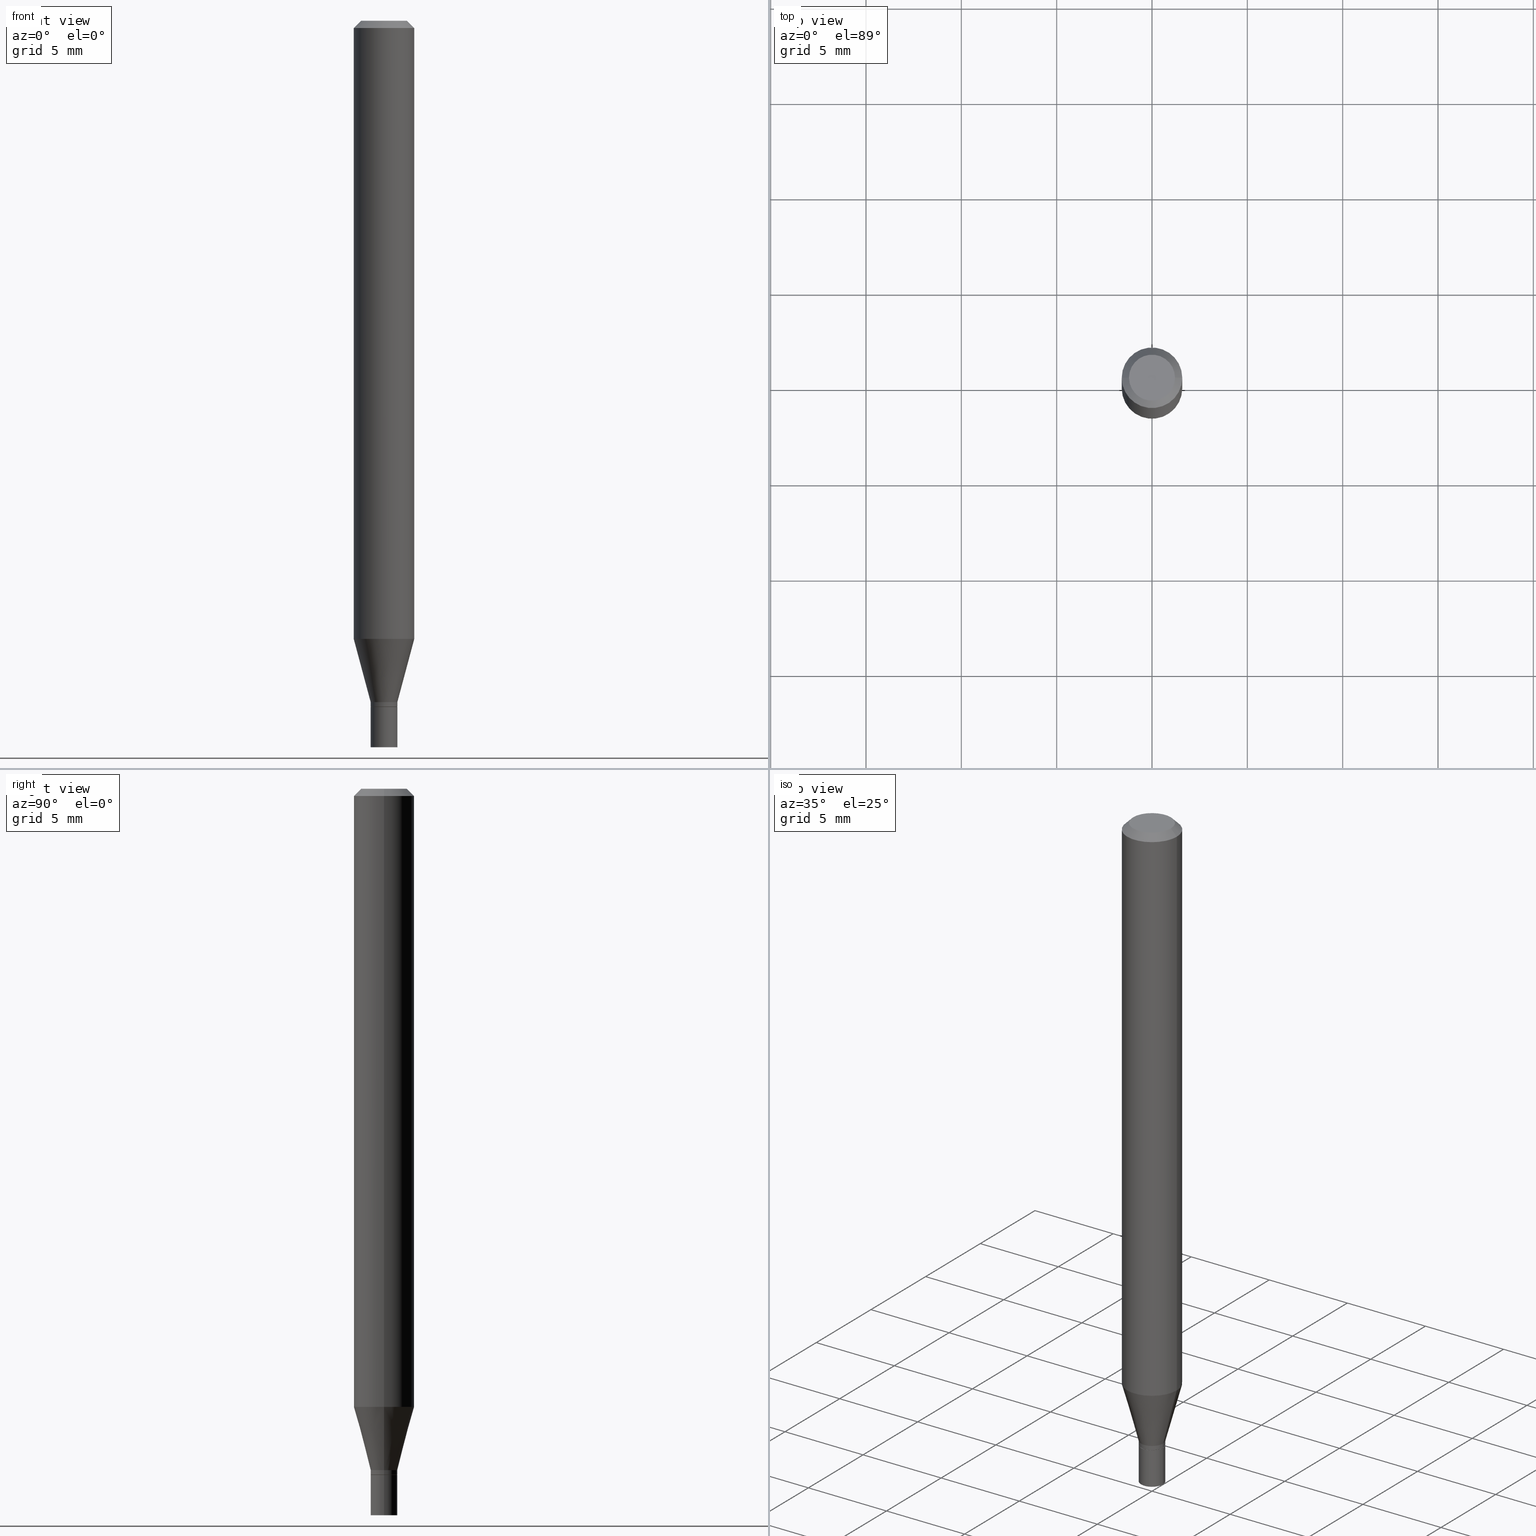
[diagram: canonical four-view strip — front | top / right | iso, engineering-drawing reading convention]
A machine part, canonical four-view strip (front | top / right | iso — engineering-drawing reading convention). The complete STEP part file that produces these views, byte-faithful:
ISO-10303-21;
HEADER;
FILE_DESCRIPTION (( 'STEP AP203' ),
    '1' );
FILE_NAME ('00351.STEP',
    '2024-03-19T21:01:54',
    ( '' ),
    ( '' ),
    'SwSTEP 2.0',
    'SolidWorks 2023',
    '' );
FILE_SCHEMA (( 'CONFIG_CONTROL_DESIGN' ));
ENDSEC;

DATA;
#1 = EDGE_LOOP ( 'NONE', ( #82, #194 ) ) ;
#2 = DIRECTION ( 'NONE',  ( -2.445468806185136597E-29, 3.491481338843145583E-15, 1.000000000000000000 ) ) ;
#3 = AXIS2_PLACEMENT_3D ( 'NONE', #248, #209, #175 ) ;
#4 = ORIENTED_EDGE ( 'NONE', *, *, #379, .T. ) ;
#5 = PRODUCT_RELATED_PRODUCT_CATEGORY ( 'detail', '', ( #151 ) ) ;
#6 = ORIENTED_EDGE ( 'NONE', *, *, #395, .T. ) ;
#7 = MECHANICAL_CONTEXT ( 'NONE', #168, 'mechanical' ) ;
#8 = CIRCLE ( 'NONE', #27, 0.06250000000000000000 ) ;
#9 = CC_DESIGN_APPROVAL ( #257, ( #216 ) ) ;
#10 = CARTESIAN_POINT ( 'NONE',  ( 0.02750000000000000014, -5.429253481901091458E-15, -1.500000000000000222 ) ) ;
#11 = EDGE_CURVE ( 'NONE', #324, #80, #450, .T. ) ;
#12 = CALENDAR_DATE ( 2024, 19, 3 ) ;
#13 = DIRECTION ( 'NONE',  ( 1.000000000000000000, -6.982962677686267499E-15, 4.852736867747366768E-29 ) ) ;
#14 = ORIENTED_EDGE ( 'NONE', *, *, #423, .F. ) ;
#15 = LENGTH_MEASURE_WITH_UNIT ( LENGTH_MEASURE( 0.02539999999999999897 ), #263 );
#16 = DIRECTION ( 'NONE',  ( -2.438088387897960049E-29, 3.491481338843145188E-15, 1.000000000000000000 ) ) ;
#17 = ORIENTED_EDGE ( 'NONE', *, *, #86, .T. ) ;
#18 = DIRECTION ( 'NONE',  ( 1.000000000000000000, -6.982962677686265922E-15, 4.876176775795935793E-29 ) ) ;
#19 = DIRECTION ( 'NONE',  ( -2.445468806185136877E-29, 3.491481338843145188E-15, 1.000000000000000000 ) ) ;
#20 = LOCAL_TIME ( 17, 1, 54.00000000000000000, #338 ) ;
#21 = CARTESIAN_POINT ( 'NONE',  ( 0.02750000000000000014, -5.139460530777110821E-15, -1.417000000000000259 ) ) ;
#22 = EDGE_CURVE ( 'NONE', #37, #394, #173, .T. ) ;
#23 = CARTESIAN_POINT ( 'NONE',  ( 1.116338794773660675E-44, -1.593835938500131952E-30, -4.564927558880287530E-16 ) ) ;
#24 = PERSON_AND_ORGANIZATION ( #434, #63 ) ;
#25 = DIRECTION ( 'NONE',  ( -2.445468806185136597E-29, 3.491481338843145583E-15, 1.000000000000000000 ) ) ;
#26 = EDGE_CURVE ( 'NONE', #74, #115, #287, .T. ) ;
#27 = AXIS2_PLACEMENT_3D ( 'NONE', #418, #277, #90 ) ;
#28 = AXIS2_PLACEMENT_3D ( 'NONE', #375, #451, #130 ) ;
#29 = EDGE_CURVE ( 'NONE', #115, #181, #337, .T. ) ;
#30 = ORIENTED_EDGE ( 'NONE', *, *, #354, .T. ) ;
#31 = CARTESIAN_POINT ( 'NONE',  ( 3.465229298364339647E-29, -4.947429057140738329E-15, -1.417000000000000259 ) ) ;
#32 = AXIS2_PLACEMENT_3D ( 'NONE', #459, #414, #456 ) ;
#33 = LOCAL_TIME ( 17, 1, 54.00000000000000000, #347 ) ;
#34 = ORIENTED_EDGE ( 'NONE', *, *, #179, .T. ) ;
#35 = CARTESIAN_POINT ( 'NONE',  ( 0.04749999999999999362, -4.035134999187586019E-16, -4.564927558880262878E-16 ) ) ;
#36 = ORIENTED_EDGE ( 'NONE', *, *, #307, .T. ) ;
#37 = VERTEX_POINT ( 'NONE', #308 ) ;
#38 = CARTESIAN_POINT ( 'NONE',  ( -0.06250000000000000000, -1.810322271438192615E-15, -0.01499999999999999944 ) ) ;
#39 = EDGE_CURVE ( 'NONE', #74, #266, #453, .T. ) ;
#40 = MANIFOLD_SOLID_BREP ( 'Body-Move/Copy2[1]', #147 ) ;
#41 = FACE_OUTER_BOUND ( 'NONE', #437, .T. ) ;
#42 = AXIS2_PLACEMENT_3D ( 'NONE', #227, #16, #18 ) ;
#43 = VERTEX_POINT ( 'NONE', #274 ) ;
#44 = ORIENTED_EDGE ( 'NONE', *, *, #448, .F. ) ;
#45 = ADVANCED_FACE ( 'NONE', ( #156 ), #417, .T. ) ;
#46 = DIRECTION ( 'NONE',  ( -2.445468806185136877E-29, 3.491481338843145188E-15, 1.000000000000000000 ) ) ;
#47 = CARTESIAN_POINT ( 'NONE',  ( 0.000000000000000000, 0.000000000000000000, 0.000000000000000000 ) ) ;
#48 = CYLINDRICAL_SURFACE ( 'NONE', #323, 0.06250000000000000000 ) ;
#49 = EDGE_LOOP ( 'NONE', ( #141, #34, #221, #112 ) ) ;
#50 = FACE_OUTER_BOUND ( 'NONE', #1, .T. ) ;
#51 = ORIENTED_EDGE ( 'NONE', *, *, #244, .F. ) ;
#52 = PERSON_AND_ORGANIZATION ( #434, #63 ) ;
#53 = CALENDAR_DATE ( 2024, 19, 3 ) ;
#54 = LINE ( 'NONE', #280, #164 ) ;
#55 = ORIENTED_EDGE ( 'NONE', *, *, #368, .F. ) ;
#56 = DIRECTION ( 'NONE',  ( -2.445468806185136597E-29, 3.491481338843145583E-15, 1.000000000000000000 ) ) ;
#57 = VECTOR ( 'NONE', #296, 39.37007874015748143 ) ;
#58 = APPROVAL_DATE_TIME ( #350, #355 ) ;
#59 = CC_DESIGN_APPROVAL ( #355, ( #135 ) ) ;
#60 = PLANE ( 'NONE',  #42 ) ;
#61 = EDGE_CURVE ( 'NONE', #108, #80, #419, .T. ) ;
#62 = AXIS2_PLACEMENT_3D ( 'NONE', #129, #279, #421 ) ;
#63 = ORGANIZATION ( 'UNSPECIFIED', 'UNSPECIFIED', '' ) ;
#64 = ADVANCED_FACE ( 'NONE', ( #341 ), #165, .T. ) ;
#65 = ORIENTED_EDGE ( 'NONE', *, *, #29, .T. ) ;
#66 = DIRECTION ( 'NONE',  ( 1.000000000000000000, -6.982962677686265922E-15, 4.876176775795935793E-29 ) ) ;
#67 = EDGE_LOOP ( 'NONE', ( #117, #65, #14, #249 ) ) ;
#68 = DIRECTION ( 'NONE',  ( 1.000000000000000000, -6.982962677686279332E-15, 0.000000000000000000 ) ) ;
#69 = AXIS2_PLACEMENT_3D ( 'NONE', #239, #56, #345 ) ;
#70 = ORIENTED_EDGE ( 'NONE', *, *, #124, .F. ) ;
#71 = DIRECTION ( 'NONE',  ( 1.000000000000000000, -6.982962677686261189E-15, 0.000000000000000000 ) ) ;
#72 = PRODUCT_DEFINITION ( 'UNKNOWN', '', #216, #410 ) ;
#73 = DIRECTION ( 'NONE',  ( 2.438088387897960049E-29, -3.491481338843145188E-15, -1.000000000000000000 ) ) ;
#74 = VERTEX_POINT ( 'NONE', #10 ) ;
#75 = DIRECTION ( 'NONE',  ( -2.445468806185136597E-29, 3.491481338843145583E-15, 1.000000000000000000 ) ) ;
#76 = AXIS2_PLACEMENT_3D ( 'NONE', #149, #320, #215 ) ;
#77 = DIRECTION ( 'NONE',  ( -2.445468806185136597E-29, 3.491481338843145583E-15, 1.000000000000000000 ) ) ;
#78 = ADVANCED_FACE ( 'NONE', ( #302 ), #229, .T. ) ;
#79 = PRODUCT_DEFINITION_SHAPE ( 'NONE', 'NONE',  #72 ) ;
#80 = VERTEX_POINT ( 'NONE', #385 ) ;
#81 = DIRECTION ( 'NONE',  ( -2.445468806185136877E-29, 3.491481338843145188E-15, 1.000000000000000000 ) ) ;
#82 = ORIENTED_EDGE ( 'NONE', *, *, #26, .F. ) ;
#83 = APPROVAL_ROLE ( '' ) ;
#84 = PLANE ( 'NONE',  #463 ) ;
#85 = AXIS2_PLACEMENT_3D ( 'NONE', #374, #95, #240 ) ;
#86 = EDGE_CURVE ( 'NONE', #360, #80, #98, .T. ) ;
#87 = ORIENTED_EDGE ( 'NONE', *, *, #462, .F. ) ;
#88 = ADVANCED_BREP_SHAPE_REPRESENTATION ( '00351', ( #40, #357, #103 ), #311 ) ;
#89 = PERSON_AND_ORGANIZATION_ROLE ( 'classification_officer' ) ;
#90 = DIRECTION ( 'NONE',  ( 1.000000000000000000, -6.982962677686262766E-15, 0.000000000000000000 ) ) ;
#91 = ORIENTED_EDGE ( 'NONE', *, *, #433, .F. ) ;
#92 = CC_DESIGN_DATE_AND_TIME_ASSIGNMENT ( #206, #425, ( #135 ) ) ;
#93 = COORDINATED_UNIVERSAL_TIME_OFFSET ( 5, 0, .BEHIND. ) ;
#94 = CARTESIAN_POINT ( 'NONE',  ( 3.440774610302487541E-29, -4.912514243752305891E-15, -1.407000000000000028 ) ) ;
#95 = DIRECTION ( 'NONE',  ( -2.445468806185136597E-29, 3.491481338843145583E-15, 1.000000000000000000 ) ) ;
#96 = APPROVAL_DATE_TIME ( #276, #257 ) ;
#97 = FACE_OUTER_BOUND ( 'NONE', #49, .T. ) ;
#98 = CIRCLE ( 'NONE', #62, 0.06250000000000000000 ) ;
#99 = CARTESIAN_POINT ( 'NONE',  ( 3.464006563961246846E-29, -4.945683316471316826E-15, -1.416500000000000314 ) ) ;
#100 = APPROVAL_ROLE ( '' ) ;
#101 = ADVANCED_FACE ( 'NONE', ( #381 ), #48, .T. ) ;
#102 = CIRCLE ( 'NONE', #366, 0.02749999999999992381 ) ;
#103 = AXIS2_PLACEMENT_3D ( 'NONE', #47, #331, #380 ) ;
#104 = AXIS2_PLACEMENT_3D ( 'NONE', #370, #226, #335 ) ;
#105 = EDGE_CURVE ( 'NONE', #108, #177, #8, .T. ) ;
#106 = ORIENTED_EDGE ( 'NONE', *, *, #349, .T. ) ;
#107 = CARTESIAN_POINT ( 'NONE',  ( 3.465229298364339647E-29, -4.947429057140738329E-15, -1.417000000000000259 ) ) ;
#108 = VERTEX_POINT ( 'NONE', #170 ) ;
#109 = DIRECTION ( 'NONE',  ( -0.7071067811865656694, 7.493145998870420424E-15, 0.7071067811865294761 ) ) ;
#110 = CIRCLE ( 'NONE', #376, 0.02750000000000000014 ) ;
#111 = EDGE_CURVE ( 'NONE', #114, #43, #247, .T. ) ;
#112 = ORIENTED_EDGE ( 'NONE', *, *, #203, .F. ) ;
#113 = DIRECTION ( 'NONE',  ( 1.000000000000000000, -6.982962677686261189E-15, 0.000000000000000000 ) ) ;
#114 = VERTEX_POINT ( 'NONE', #313 ) ;
#115 = VERTEX_POINT ( 'NONE', #409 ) ;
#116 = AXIS2_PLACEMENT_3D ( 'NONE', #218, #140, #403 ) ;
#117 = ORIENTED_EDGE ( 'NONE', *, *, #26, .T. ) ;
#118 = APPROVAL_DATE_TIME ( #267, #427 ) ;
#119 = CYLINDRICAL_SURFACE ( 'NONE', #300, 0.02749999999999992034 ) ;
#120 = ORIENTED_EDGE ( 'NONE', *, *, #11, .F. ) ;
#121 = DIRECTION ( 'NONE',  ( -2.445468806185136597E-29, 3.491481338843145583E-15, 1.000000000000000000 ) ) ;
#122 = CARTESIAN_POINT ( 'NONE',  ( 3.668203209277704895E-29, -5.237222008264718177E-15, -1.500000000000000222 ) ) ;
#123 = DIRECTION ( 'NONE',  ( -2.445468806185136597E-29, 3.491481338843145583E-15, 1.000000000000000000 ) ) ;
#124 = EDGE_CURVE ( 'NONE', #404, #360, #54, .T. ) ;
#125 = CIRCLE ( 'NONE', #430, 0.02699999999999999969 ) ;
#126 = CARTESIAN_POINT ( 'NONE',  ( 0.02750000000000000014, -1.920314736363723444E-16, 1.340948613343882413E-30 ) ) ;
#127 = PERSON_AND_ORGANIZATION ( #434, #63 ) ;
#128 = DIRECTION ( 'NONE',  ( 1.000000000000000000, -6.982962677686266711E-15, 4.876176775795936353E-29 ) ) ;
#129 = CARTESIAN_POINT ( 'NONE',  ( 3.668203209277705088E-31, -5.237222008264718399E-17, -0.01499999999999999944 ) ) ;
#130 = DIRECTION ( 'NONE',  ( 1.000000000000000000, -6.982962677686266711E-15, 0.000000000000000000 ) ) ;
#131 = CARTESIAN_POINT ( 'NONE',  ( 0.000000000000000000, 0.000000000000000000, 0.000000000000000000 ) ) ;
#132 = PERSON_AND_ORGANIZATION ( #434, #63 ) ;
#133 = EDGE_CURVE ( 'NONE', #297, #457, #125, .T. ) ;
#134 = CONICAL_SURFACE ( 'NONE', #3, 0.06250000000000000000, 0.7853981633974636001 ) ;
#135 = SECURITY_CLASSIFICATION ( '', '', #241 ) ;
#136 = DIRECTION ( 'NONE',  ( 1.000000000000000000, -6.982962677686267499E-15, 4.852736867747366768E-29 ) ) ;
#137 = VECTOR ( 'NONE', #109, 39.37007874015748143 ) ;
#138 = CC_DESIGN_APPROVAL ( #427, ( #72 ) ) ;
#139 = EDGE_LOOP ( 'NONE', ( #51, #371, #210, #70 ) ) ;
#140 = DIRECTION ( 'NONE',  ( -2.445468806185136597E-29, 3.491481338843145583E-15, 1.000000000000000000 ) ) ;
#141 = ORIENTED_EDGE ( 'NONE', *, *, #111, .T. ) ;
#142 = LINE ( 'NONE', #291, #137 ) ;
#143 = CC_DESIGN_PERSON_AND_ORGANIZATION_ASSIGNMENT ( #343, #89, ( #135 ) ) ;
#144 = CARTESIAN_POINT ( 'NONE',  ( 3.440774610302487541E-29, -4.912514243752305891E-15, -1.407000000000000028 ) ) ;
#145 = AXIS2_PLACEMENT_3D ( 'NONE', #122, #329, #269 ) ;
#146 = APPROVAL_PERSON_ORGANIZATION ( #303, #257, #83 ) ;
#147 = CLOSED_SHELL ( 'NONE', ( #273, #195, #64, #188 ) ) ;
#148 = EDGE_LOOP ( 'NONE', ( #363, #30 ) ) ;
#149 = CARTESIAN_POINT ( 'NONE',  ( 3.121343126147216343E-29, -4.456450742493863778E-15, -1.276378221735089191 ) ) ;
#150 = EDGE_LOOP ( 'NONE', ( #55, #4, #416, #252 ) ) ;
#151 = PRODUCT ( '00351', '00351', '', ( #7 ) ) ;
#152 = ORIENTED_EDGE ( 'NONE', *, *, #105, .F. ) ;
#153 =( NAMED_UNIT ( * ) SI_UNIT ( $, .STERADIAN. ) SOLID_ANGLE_UNIT ( ) );
#154 = VECTOR ( 'NONE', #314, 39.37007874015748143 ) ;
#155 = CIRCLE ( 'NONE', #28, 0.06250000000000000000 ) ;
#156 = FACE_OUTER_BOUND ( 'NONE', #217, .T. ) ;
#157 = DATE_AND_TIME ( #12, #185 ) ;
#158 = CYLINDRICAL_SURFACE ( 'NONE', #69, 0.02750000000000000014 ) ;
#159 = ORIENTED_EDGE ( 'NONE', *, *, #362, .F. ) ;
#160 = CC_DESIGN_PERSON_AND_ORGANIZATION_ASSIGNMENT ( #309, #270, ( #151 ) ) ;
#161 = FACE_OUTER_BOUND ( 'NONE', #219, .T. ) ;
#162 = ORIENTED_EDGE ( 'NONE', *, *, #124, .T. ) ;
#163 = DIRECTION ( 'NONE',  ( -0.7071067811865583419, 2.468850131082370262E-15, -0.7071067811865366926 ) ) ;
#164 = VECTOR ( 'NONE', #163, 39.37007874015748143 ) ;
#165 = CYLINDRICAL_SURFACE ( 'NONE', #352, 0.02750000000000000014 ) ;
#166 = DIRECTION ( 'NONE',  ( -0.2588190451025211836, 5.211531920934547886E-15, 0.9659258262890679791 ) ) ;
#167 = FACE_OUTER_BOUND ( 'NONE', #214, .T. ) ;
#168 = APPLICATION_CONTEXT ( 'configuration controlled 3d designs of mechanical parts and assemblies' ) ;
#169 = SHAPE_DEFINITION_REPRESENTATION ( #79, #88 ) ;
#170 = CARTESIAN_POINT ( 'NONE',  ( 0.06250000000000000000, -4.892885909849253869E-15, -1.276378221735089191 ) ) ;
#171 = AXIS2_PLACEMENT_3D ( 'NONE', #253, #2, #71 ) ;
#172 = PERSON_AND_ORGANIZATION_ROLE ( 'design_supplier' ) ;
#173 = CIRCLE ( 'NONE', #407, 0.02749999999999992034 ) ;
#174 = CC_DESIGN_PERSON_AND_ORGANIZATION_ASSIGNMENT ( #422, #172, ( #216 ) ) ;
#175 = DIRECTION ( 'NONE',  ( -1.000000000000000000, 6.982962677686266711E-15, 0.000000000000000000 ) ) ;
#176 = AXIS2_PLACEMENT_3D ( 'NONE', #144, #75, #364 ) ;
#177 = VERTEX_POINT ( 'NONE', #452 ) ;
#178 = CARTESIAN_POINT ( 'NONE',  ( -0.06250000000000000000, 4.440892098500626162E-16, -3.074334431409316114E-30 ) ) ;
#179 = EDGE_CURVE ( 'NONE', #43, #394, #197, .T. ) ;
#180 = ORIENTED_EDGE ( 'NONE', *, *, #111, .F. ) ;
#181 = VERTEX_POINT ( 'NONE', #200 ) ;
#182 = PLANE ( 'NONE',  #285 ) ;
#183 = EDGE_LOOP ( 'NONE', ( #260, #398 ) ) ;
#184 = LINE ( 'NONE', #178, #57 ) ;
#185 = LOCAL_TIME ( 17, 1, 54.00000000000000000, #93 ) ;
#186 = CARTESIAN_POINT ( 'NONE',  ( 3.316907271900976096E-16, 0.04749999999999999362, -3.940917415390638222E-16 ) ) ;
#187 = ORIENTED_EDGE ( 'NONE', *, *, #411, .T. ) ;
#188 = ADVANCED_FACE ( 'NONE', ( #388 ), #84, .F. ) ;
#189 = EDGE_LOOP ( 'NONE', ( #392, #356, #402, #288 ) ) ;
#190 = DIRECTION ( 'NONE',  ( 1.000000000000000000, -6.982962677686266711E-15, 4.876176775795935793E-29 ) ) ;
#191 = PERSON_AND_ORGANIZATION_ROLE ( 'creator' ) ;
#192 = DIRECTION ( 'NONE',  ( 1.000000000000000000, -6.982962677686261189E-15, 0.000000000000000000 ) ) ;
#193 = VECTOR ( 'NONE', #19, 39.37007874015748143 ) ;
#194 = ORIENTED_EDGE ( 'NONE', *, *, #441, .F. ) ;
#195 = ADVANCED_FACE ( 'NONE', ( #50 ), #60, .F. ) ;
#196 =( CONVERSION_BASED_UNIT ( 'INCH', #15 ) LENGTH_UNIT ( ) NAMED_UNIT ( #254 ) );
#197 = LINE ( 'NONE', #235, #387 ) ;
#198 = CARTESIAN_POINT ( 'NONE',  ( 3.440774610302487541E-29, -4.912514243752305891E-15, -1.407000000000000028 ) ) ;
#199 = APPROVAL_ROLE ( '' ) ;
#200 = CARTESIAN_POINT ( 'NONE',  ( -0.02750000000000000014, -4.896926280368699739E-15, -1.417000000000000259 ) ) ;
#201 = DIRECTION ( 'NONE',  ( 1.000000000000000000, -6.982962677686265133E-15, 0.000000000000000000 ) ) ;
#202 = LINE ( 'NONE', #207, #154 ) ;
#203 = EDGE_CURVE ( 'NONE', #114, #37, #202, .T. ) ;
#204 = AXIS2_PLACEMENT_3D ( 'NONE', #333, #310, #13 ) ;
#205 = DIRECTION ( 'NONE',  ( 1.000000000000000000, -6.982962677686264344E-15, 0.000000000000000000 ) ) ;
#206 = DATE_AND_TIME ( #455, #33 ) ;
#207 = CARTESIAN_POINT ( 'NONE',  ( 0.02749999999999992034, -1.920314736363717774E-16, 1.340948613343878560E-30 ) ) ;
#208 = CC_DESIGN_PERSON_AND_ORGANIZATION_ASSIGNMENT ( #127, #191, ( #72 ) ) ;
#209 = DIRECTION ( 'NONE',  ( 2.445468806185136597E-29, -3.491481338843145583E-15, -1.000000000000000000 ) ) ;
#210 = ORIENTED_EDGE ( 'NONE', *, *, #448, .T. ) ;
#211 = APPLICATION_CONTEXT ( 'configuration controlled 3d designs of mechanical parts and assemblies' ) ;
#212 = ADVANCED_FACE ( 'NONE', ( #161 ), #119, .T. ) ;
#213 = VECTOR ( 'NONE', #262, 39.37007874015748143 ) ;
#214 = EDGE_LOOP ( 'NONE', ( #120, #382, #162, #17 ) ) ;
#215 = DIRECTION ( 'NONE',  ( 1.000000000000000000, -6.982962677686262766E-15, 0.000000000000000000 ) ) ;
#216 = PRODUCT_DEFINITION_FORMATION_WITH_SPECIFIED_SOURCE ( 'ANY', '', #151, .NOT_KNOWN. ) ;
#217 = EDGE_LOOP ( 'NONE', ( #378, #431, #152, #365 ) ) ;
#218 = CARTESIAN_POINT ( 'NONE',  ( 3.465229298364339647E-29, -4.947429057140738329E-15, -1.417000000000000259 ) ) ;
#219 = EDGE_LOOP ( 'NONE', ( #258, #369, #293, #305 ) ) ;
#220 = DIRECTION ( 'NONE',  ( -1.000000000000000000, 6.982962677686265922E-15, -4.876176775795935793E-29 ) ) ;
#221 = ORIENTED_EDGE ( 'NONE', *, *, #22, .F. ) ;
#222 = AXIS2_PLACEMENT_3D ( 'NONE', #23, #245, #136 ) ;
#223 = DIRECTION ( 'NONE',  ( 0.7071067811865583419, -7.319954787623292333E-15, -0.7071067811865366926 ) ) ;
#224 = DIRECTION ( 'NONE',  ( 0.7071067811865656694, -2.468850131082446387E-15, 0.7071067811865294761 ) ) ;
#225 = DIRECTION ( 'NONE',  ( -2.445468806185136597E-29, 3.491481338843145583E-15, 1.000000000000000000 ) ) ;
#226 = DIRECTION ( 'NONE',  ( -2.445468806185136597E-29, 3.491481338843145583E-15, 1.000000000000000000 ) ) ;
#227 = CARTESIAN_POINT ( 'NONE',  ( 3.576687321579069994E-29, -5.368277968210015545E-15, -1.500000000000000222 ) ) ;
#228 = CC_DESIGN_DATE_AND_TIME_ASSIGNMENT ( #157, #237, ( #72 ) ) ;
#229 = CYLINDRICAL_SURFACE ( 'NONE', #85, 0.06250000000000000000 ) ;
#230 = CARTESIAN_POINT ( 'NONE',  ( -0.02749999999999992034, -4.717114991418278561E-15, -1.407000000000000028 ) ) ;
#231 = DIRECTION ( 'NONE',  ( -1.000000000000000000, 6.982962677686265922E-15, -4.876176775795935793E-29 ) ) ;
#232 = CONICAL_SURFACE ( 'NONE', #116, 0.02699999999999999969, 0.7853981633974739252 ) ;
#233 = VECTOR ( 'NONE', #166, 39.37007874015748854 ) ;
#234 = EDGE_LOOP ( 'NONE', ( #319, #334, #465, #435 ) ) ;
#235 = CARTESIAN_POINT ( 'NONE',  ( -0.02749999999999992034, 1.953992523340269851E-16, -1.352707149820094977E-30 ) ) ;
#236 = CARTESIAN_POINT ( 'NONE',  ( 0.06250000000000000000, -4.811533449433679005E-16, -0.01499999999999999944 ) ) ;
#237 = DATE_TIME_ROLE ( 'creation_date' ) ;
#238 = COORDINATED_UNIVERSAL_TIME_OFFSET ( 5, 0, .BEHIND. ) ;
#239 = CARTESIAN_POINT ( 'NONE',  ( 0.000000000000000000, 0.000000000000000000, 0.000000000000000000 ) ) ;
#240 = DIRECTION ( 'NONE',  ( 1.000000000000000000, -6.982962677686266711E-15, 4.876176775795935793E-29 ) ) ;
#241 = SECURITY_CLASSIFICATION_LEVEL ( 'unclassified' ) ;
#242 = CYLINDRICAL_SURFACE ( 'NONE', #251, 0.02749999999999992034 ) ;
#243 = CIRCLE ( 'NONE', #464, 0.02750000000000000014 ) ;
#244 = EDGE_CURVE ( 'NONE', #324, #404, #460, .T. ) ;
#245 = DIRECTION ( 'NONE',  ( -2.445468806185136597E-29, 3.491481338843145583E-15, 1.000000000000000000 ) ) ;
#246 = CONICAL_SURFACE ( 'NONE', #344, 0.06250000000000000000, 0.7853981633974636001 ) ;
#247 = CIRCLE ( 'NONE', #32, 0.02749999999999992381 ) ;
#248 = CARTESIAN_POINT ( 'NONE',  ( 3.668203209277705088E-31, -5.237222008264718399E-17, -0.01499999999999999944 ) ) ;
#249 = ORIENTED_EDGE ( 'NONE', *, *, #39, .F. ) ;
#250 = DIRECTION ( 'NONE',  ( -2.445468806185136597E-29, 3.491481338843145583E-15, 1.000000000000000000 ) ) ;
#251 = AXIS2_PLACEMENT_3D ( 'NONE', #449, #121, #429 ) ;
#252 = ORIENTED_EDGE ( 'NONE', *, *, #295, .F. ) ;
#253 = CARTESIAN_POINT ( 'NONE',  ( 3.465229298364339647E-29, -4.947429057140738329E-15, -1.417000000000000259 ) ) ;
#254 = DIMENSIONAL_EXPONENTS ( 1.000000000000000000, 0.000000000000000000, 0.000000000000000000, 0.000000000000000000, 0.000000000000000000, 0.000000000000000000, 0.000000000000000000 ) ;
#255 = EDGE_LOOP ( 'NONE', ( #446, #326, #180, #91 ) ) ;
#256 = DIRECTION ( 'NONE',  ( 1.000000000000000000, -6.982962677686279332E-15, 0.000000000000000000 ) ) ;
#257 = APPROVAL ( #447, 'UNSPECIFIED' ) ;
#258 = ORIENTED_EDGE ( 'NONE', *, *, #179, .F. ) ;
#259 = CARTESIAN_POINT ( 'NONE',  ( 3.465229298364339647E-29, -4.947429057140738329E-15, -1.417000000000000259 ) ) ;
#260 = ORIENTED_EDGE ( 'NONE', *, *, #133, .F. ) ;
#261 = CIRCLE ( 'NONE', #171, 0.02699999999999999969 ) ;
#262 = DIRECTION ( 'NONE',  ( -2.445468806185136877E-29, 3.491481338843145188E-15, 1.000000000000000000 ) ) ;
#263 =( LENGTH_UNIT ( ) NAMED_UNIT ( * ) SI_UNIT ( $, .METRE. ) );
#264 = ADVANCED_FACE ( 'NONE', ( #420 ), #396, .T. ) ;
#265 = FACE_OUTER_BOUND ( 'NONE', #67, .T. ) ;
#266 = VERTEX_POINT ( 'NONE', #21 ) ;
#267 = DATE_AND_TIME ( #444, #20 ) ;
#268 = DIRECTION ( 'NONE',  ( 1.000000000000000000, -6.982962677686266711E-15, 4.876176775795935793E-29 ) ) ;
#269 = DIRECTION ( 'NONE',  ( 1.000000000000000000, -6.982962677686279332E-15, 0.000000000000000000 ) ) ;
#270 = PERSON_AND_ORGANIZATION_ROLE ( 'design_owner' ) ;
#271 = DIRECTION ( 'NONE',  ( -2.445468806185136597E-29, 3.491481338843145583E-15, 1.000000000000000000 ) ) ;
#272 = AXIS2_PLACEMENT_3D ( 'NONE', #299, #443, #201 ) ;
#273 = ADVANCED_FACE ( 'NONE', ( #265 ), #158, .T. ) ;
#274 = CARTESIAN_POINT ( 'NONE',  ( -0.02749999999999992381, -4.750284064137290284E-15, -1.416500000000000314 ) ) ;
#275 = APPLICATION_PROTOCOL_DEFINITION ( 'international standard', 'config_control_design', 1994, #211 ) ;
#276 = DATE_AND_TIME ( #53, #346 ) ;
#277 = DIRECTION ( 'NONE',  ( -2.445468806185136597E-29, 3.491481338843145583E-15, 1.000000000000000000 ) ) ;
#278 = UNCERTAINTY_MEASURE_WITH_UNIT (LENGTH_MEASURE( 1.000000000000000082E-05 ), #196, 'distance_accuracy_value', 'NONE');
#279 = DIRECTION ( 'NONE',  ( -2.445468806185136597E-29, 3.491481338843145583E-15, 1.000000000000000000 ) ) ;
#280 = CARTESIAN_POINT ( 'NONE',  ( -0.06250000000000000000, 3.840629472727444916E-16, -0.01499999999999999944 ) ) ;
#281 = APPROVAL_STATUS ( 'not_yet_approved' ) ;
#282 = VECTOR ( 'NONE', #224, 39.37007874015748143 ) ;
#283 = ADVANCED_FACE ( 'NONE', ( #167 ), #246, .T. ) ;
#284 = VECTOR ( 'NONE', #46, 39.37007874015748143 ) ;
#285 = AXIS2_PLACEMENT_3D ( 'NONE', #259, #432, #66 ) ;
#286 = ADVANCED_FACE ( 'NONE', ( #97 ), #242, .T. ) ;
#287 = CIRCLE ( 'NONE', #145, 0.02750000000000000014 ) ;
#288 = ORIENTED_EDGE ( 'NONE', *, *, #86, .F. ) ;
#289 = CARTESIAN_POINT ( 'NONE',  ( 3.465229298364339647E-29, -4.947429057140738329E-15, -1.417000000000000259 ) ) ;
#290 = EDGE_LOOP ( 'NONE', ( #87, #187, #106, #159 ) ) ;
#291 = CARTESIAN_POINT ( 'NONE',  ( -0.02699999999999999969, -4.755582518485511109E-15, -1.417000000000000259 ) ) ;
#292 = AXIS2_PLACEMENT_3D ( 'NONE', #94, #271, #384 ) ;
#293 = ORIENTED_EDGE ( 'NONE', *, *, #203, .T. ) ;
#294 = FACE_OUTER_BOUND ( 'NONE', #150, .T. ) ;
#295 = EDGE_CURVE ( 'NONE', #43, #114, #102, .T. ) ;
#296 = DIRECTION ( 'NONE',  ( -2.445468806185136877E-29, 3.491481338843145188E-15, 1.000000000000000000 ) ) ;
#297 = VERTEX_POINT ( 'NONE', #461 ) ;
#298 = FACE_OUTER_BOUND ( 'NONE', #255, .T. ) ;
#299 = CARTESIAN_POINT ( 'NONE',  ( 3.440774610302487541E-29, -4.912514243752305891E-15, -1.407000000000000028 ) ) ;
#300 = AXIS2_PLACEMENT_3D ( 'NONE', #131, #123, #128 ) ;
#301 = APPROVAL_PERSON_ORGANIZATION ( #132, #355, #100 ) ;
#302 = FACE_OUTER_BOUND ( 'NONE', #367, .T. ) ;
#303 = PERSON_AND_ORGANIZATION ( #434, #63 ) ;
#304 = CARTESIAN_POINT ( 'NONE',  ( 3.668203209277705088E-31, -5.237222008264718399E-17, -0.01499999999999999944 ) ) ;
#305 = ORIENTED_EDGE ( 'NONE', *, *, #411, .F. ) ;
#306 = DIRECTION ( 'NONE',  ( -2.445468806185136597E-29, 3.491481338843145583E-15, 1.000000000000000000 ) ) ;
#307 = EDGE_CURVE ( 'NONE', #404, #324, #316, .T. ) ;
#308 = CARTESIAN_POINT ( 'NONE',  ( 0.02749999999999992034, -5.104545717388677595E-15, -1.407000000000000028 ) ) ;
#309 = PERSON_AND_ORGANIZATION ( #434, #63 ) ;
#310 = DIRECTION ( 'NONE',  ( -2.445468806185136597E-29, 3.491481338843145583E-15, 1.000000000000000000 ) ) ;
#311 =( GEOMETRIC_REPRESENTATION_CONTEXT ( 3 ) GLOBAL_UNCERTAINTY_ASSIGNED_CONTEXT ( ( #278 ) ) GLOBAL_UNIT_ASSIGNED_CONTEXT ( ( #196, #458, #153 ) ) REPRESENTATION_CONTEXT ( 'NONE', 'WORKASPACE' ) );
#312 = DIRECTION ( 'NONE',  ( 1.000000000000000000, -6.982962677686265133E-15, 0.000000000000000000 ) ) ;
#313 = CARTESIAN_POINT ( 'NONE',  ( 0.02749999999999992381, -5.137714790107688529E-15, -1.416500000000000314 ) ) ;
#314 = DIRECTION ( 'NONE',  ( -2.445468806185136877E-29, 3.491481338843145188E-15, 1.000000000000000000 ) ) ;
#315 = ADVANCED_FACE ( 'NONE', ( #393 ), #134, .T. ) ;
#316 = CIRCLE ( 'NONE', #222, 0.04749999999999999362 ) ;
#317 = CIRCLE ( 'NONE', #76, 0.06250000000000000000 ) ;
#318 = LINE ( 'NONE', #361, #332 ) ;
#319 = ORIENTED_EDGE ( 'NONE', *, *, #29, .F. ) ;
#320 = DIRECTION ( 'NONE',  ( -2.445468806185136597E-29, 3.491481338843145583E-15, 1.000000000000000000 ) ) ;
#321 = ORIENTED_EDGE ( 'NONE', *, *, #105, .T. ) ;
#322 = ADVANCED_FACE ( 'NONE', ( #41 ), #325, .F. ) ;
#323 = AXIS2_PLACEMENT_3D ( 'NONE', #348, #306, #268 ) ;
#324 = VERTEX_POINT ( 'NONE', #35 ) ;
#325 = PLANE ( 'NONE',  #426 ) ;
#326 = ORIENTED_EDGE ( 'NONE', *, *, #368, .T. ) ;
#327 = DIRECTION ( 'NONE',  ( -2.445468806185136597E-29, 3.491481338843145583E-15, 1.000000000000000000 ) ) ;
#328 = CC_DESIGN_PERSON_AND_ORGANIZATION_ASSIGNMENT ( #24, #383, ( #216 ) ) ;
#329 = DIRECTION ( 'NONE',  ( -2.445468806185136597E-29, 3.491481338843145583E-15, 1.000000000000000000 ) ) ;
#330 = CARTESIAN_POINT ( 'NONE',  ( 0.06250000000000000000, -4.364351673553916694E-16, 3.047610484872459871E-30 ) ) ;
#331 = DIRECTION ( 'NONE',  ( 0.000000000000000000, 0.000000000000000000, 1.000000000000000000 ) ) ;
#332 = VECTOR ( 'NONE', #436, 39.37007874015748854 ) ;
#333 = CARTESIAN_POINT ( 'NONE',  ( 1.116338794773660675E-44, -1.593835938500131952E-30, -4.564927558880287530E-16 ) ) ;
#334 = ORIENTED_EDGE ( 'NONE', *, *, #441, .T. ) ;
#335 = DIRECTION ( 'NONE',  ( 1.000000000000000000, -6.982962677686279332E-15, 0.000000000000000000 ) ) ;
#336 = CARTESIAN_POINT ( 'NONE',  ( 3.465229298364339647E-29, -4.947429057140738329E-15, -1.417000000000000259 ) ) ;
#337 = LINE ( 'NONE', #412, #284 ) ;
#338 = COORDINATED_UNIVERSAL_TIME_OFFSET ( 5, 0, .BEHIND. ) ;
#339 = ADVANCED_FACE ( 'NONE', ( #440 ), #182, .F. ) ;
#340 = CARTESIAN_POINT ( 'NONE',  ( 1.920314736364070050E-16, 0.02749999999999505271, -1.417000000000000259 ) ) ;
#341 = FACE_OUTER_BOUND ( 'NONE', #234, .T. ) ;
#342 = LINE ( 'NONE', #230, #233 ) ;
#343 = PERSON_AND_ORGANIZATION ( #434, #63 ) ;
#344 = AXIS2_PLACEMENT_3D ( 'NONE', #304, #373, #424 ) ;
#345 = DIRECTION ( 'NONE',  ( 1.000000000000000000, -6.982962677686266711E-15, 4.876176775795935793E-29 ) ) ;
#346 = LOCAL_TIME ( 17, 1, 54.00000000000000000, #238 ) ;
#347 = COORDINATED_UNIVERSAL_TIME_OFFSET ( 5, 0, .BEHIND. ) ;
#348 = CARTESIAN_POINT ( 'NONE',  ( 0.000000000000000000, 0.000000000000000000, 0.000000000000000000 ) ) ;
#349 = EDGE_CURVE ( 'NONE', #37, #108, #318, .T. ) ;
#350 = DATE_AND_TIME ( #386, #397 ) ;
#351 = COORDINATED_UNIVERSAL_TIME_OFFSET ( 5, 0, .BEHIND. ) ;
#352 = AXIS2_PLACEMENT_3D ( 'NONE', #408, #225, #190 ) ;
#353 = CLOSED_SHELL ( 'NONE', ( #286, #406, #315, #78, #45, #264, #101, #283, #322, #339, #415, #212 ) ) ;
#354 = EDGE_CURVE ( 'NONE', #181, #266, #110, .T. ) ;
#355 = APPROVAL ( #281, 'UNSPECIFIED' ) ;
#356 = ORIENTED_EDGE ( 'NONE', *, *, #362, .T. ) ;
#357 = MANIFOLD_SOLID_BREP ( 'Body-Move/Copy2[2]', #353 ) ;
#358 = CONICAL_SURFACE ( 'NONE', #359, 0.02699999999999999969, 0.7853981633974739252 ) ;
#359 = AXIS2_PLACEMENT_3D ( 'NONE', #289, #438, #113 ) ;
#360 = VERTEX_POINT ( 'NONE', #38 ) ;
#361 = CARTESIAN_POINT ( 'NONE',  ( 0.02749999999999992034, -5.104545717388677595E-15, -1.407000000000000028 ) ) ;
#362 = EDGE_CURVE ( 'NONE', #177, #108, #317, .T. ) ;
#363 = ORIENTED_EDGE ( 'NONE', *, *, #423, .T. ) ;
#364 = DIRECTION ( 'NONE',  ( 1.000000000000000000, -6.982962677686265133E-15, 0.000000000000000000 ) ) ;
#365 = ORIENTED_EDGE ( 'NONE', *, *, #349, .F. ) ;
#366 = AXIS2_PLACEMENT_3D ( 'NONE', #99, #428, #205 ) ;
#367 = EDGE_LOOP ( 'NONE', ( #321, #6, #44, #439 ) ) ;
#368 = EDGE_CURVE ( 'NONE', #457, #43, #142, .T. ) ;
#369 = ORIENTED_EDGE ( 'NONE', *, *, #295, .T. ) ;
#370 = CARTESIAN_POINT ( 'NONE',  ( 3.668203209277704895E-29, -5.237222008264718177E-15, -1.500000000000000222 ) ) ;
#371 = ORIENTED_EDGE ( 'NONE', *, *, #11, .T. ) ;
#372 = CARTESIAN_POINT ( 'NONE',  ( 0.02699999999999999969, -5.135969049438267025E-15, -1.417000000000000259 ) ) ;
#373 = DIRECTION ( 'NONE',  ( 2.445468806185136597E-29, -3.491481338843145583E-15, -1.000000000000000000 ) ) ;
#374 = CARTESIAN_POINT ( 'NONE',  ( 0.000000000000000000, 0.000000000000000000, 0.000000000000000000 ) ) ;
#375 = CARTESIAN_POINT ( 'NONE',  ( 3.668203209277705088E-31, -5.237222008264718399E-17, -0.01499999999999999944 ) ) ;
#376 = AXIS2_PLACEMENT_3D ( 'NONE', #31, #327, #68 ) ;
#377 = DIRECTION ( 'NONE',  ( 2.438088387897960049E-29, -3.491481338843145188E-15, -1.000000000000000000 ) ) ;
#378 = ORIENTED_EDGE ( 'NONE', *, *, #22, .T. ) ;
#379 = EDGE_CURVE ( 'NONE', #457, #297, #261, .T. ) ;
#380 = DIRECTION ( 'NONE',  ( 1.000000000000000000, 0.000000000000000000, 0.000000000000000000 ) ) ;
#381 = FACE_OUTER_BOUND ( 'NONE', #189, .T. ) ;
#382 = ORIENTED_EDGE ( 'NONE', *, *, #307, .F. ) ;
#383 = PERSON_AND_ORGANIZATION_ROLE ( 'creator' ) ;
#384 = DIRECTION ( 'NONE',  ( 1.000000000000000000, -6.982962677686265133E-15, 0.000000000000000000 ) ) ;
#385 = CARTESIAN_POINT ( 'NONE',  ( 0.06250000000000000000, -4.888073874380388472E-16, -0.01499999999999999944 ) ) ;
#386 = CALENDAR_DATE ( 2024, 19, 3 ) ;
#387 = VECTOR ( 'NONE', #81, 39.37007874015748143 ) ;
#388 = FACE_OUTER_BOUND ( 'NONE', #148, .T. ) ;
#389 = CC_DESIGN_SECURITY_CLASSIFICATION ( #135, ( #216 ) ) ;
#390 = CIRCLE ( 'NONE', #176, 0.02749999999999992034 ) ;
#391 = CIRCLE ( 'NONE', #104, 0.02750000000000000014 ) ;
#392 = ORIENTED_EDGE ( 'NONE', *, *, #395, .F. ) ;
#393 = FACE_OUTER_BOUND ( 'NONE', #139, .T. ) ;
#394 = VERTEX_POINT ( 'NONE', #399 ) ;
#395 = EDGE_CURVE ( 'NONE', #177, #360, #184, .T. ) ;
#396 = CONICAL_SURFACE ( 'NONE', #292, 0.02749999999999992034, 0.2617993877991499074 ) ;
#397 = LOCAL_TIME ( 17, 1, 54.00000000000000000, #351 ) ;
#398 = ORIENTED_EDGE ( 'NONE', *, *, #379, .F. ) ;
#399 = CARTESIAN_POINT ( 'NONE',  ( -0.02749999999999992034, -4.364738262031039467E-15, -1.407000000000000028 ) ) ;
#400 = ORIENTED_EDGE ( 'NONE', *, *, #244, .T. ) ;
#401 = LINE ( 'NONE', #372, #282 ) ;
#402 = ORIENTED_EDGE ( 'NONE', *, *, #61, .T. ) ;
#403 = DIRECTION ( 'NONE',  ( 1.000000000000000000, -6.982962677686261189E-15, 0.000000000000000000 ) ) ;
#404 = VERTEX_POINT ( 'NONE', #466 ) ;
#405 = CARTESIAN_POINT ( 'NONE',  ( -0.02699999999999999969, -4.752933291311399907E-15, -1.417000000000000259 ) ) ;
#406 = ADVANCED_FACE ( 'NONE', ( #298 ), #232, .T. ) ;
#407 = AXIS2_PLACEMENT_3D ( 'NONE', #198, #77, #312 ) ;
#408 = CARTESIAN_POINT ( 'NONE',  ( 0.000000000000000000, 0.000000000000000000, 0.000000000000000000 ) ) ;
#409 = CARTESIAN_POINT ( 'NONE',  ( -0.02750000000000000014, -4.896926280368699739E-15, -1.500000000000000222 ) ) ;
#410 = DESIGN_CONTEXT ( 'detailed design', #211, 'design' ) ;
#411 = EDGE_CURVE ( 'NONE', #394, #37, #390, .T. ) ;
#412 = CARTESIAN_POINT ( 'NONE',  ( -0.02750000000000000014, 1.953992523340275521E-16, -1.352707149820099181E-30 ) ) ;
#413 = APPROVAL_STATUS ( 'not_yet_approved' ) ;
#414 = DIRECTION ( 'NONE',  ( -2.445468806185136597E-29, 3.491481338843145583E-15, 1.000000000000000000 ) ) ;
#415 = ADVANCED_FACE ( 'NONE', ( #294 ), #358, .T. ) ;
#416 = ORIENTED_EDGE ( 'NONE', *, *, #433, .T. ) ;
#417 = CONICAL_SURFACE ( 'NONE', #272, 0.02749999999999992034, 0.2617993877991499074 ) ;
#418 = CARTESIAN_POINT ( 'NONE',  ( 3.121343126147216343E-29, -4.456450742493863778E-15, -1.276378221735089191 ) ) ;
#419 = LINE ( 'NONE', #330, #213 ) ;
#420 = FACE_OUTER_BOUND ( 'NONE', #290, .T. ) ;
#421 = DIRECTION ( 'NONE',  ( 1.000000000000000000, -6.982962677686266711E-15, 0.000000000000000000 ) ) ;
#422 = PERSON_AND_ORGANIZATION ( #434, #63 ) ;
#423 = EDGE_CURVE ( 'NONE', #266, #181, #243, .T. ) ;
#424 = DIRECTION ( 'NONE',  ( -1.000000000000000000, 6.982962677686266711E-15, 0.000000000000000000 ) ) ;
#425 = DATE_TIME_ROLE ( 'classification_date' ) ;
#426 = AXIS2_PLACEMENT_3D ( 'NONE', #186, #73, #220 ) ;
#427 = APPROVAL ( #413, 'UNSPECIFIED' ) ;
#428 = DIRECTION ( 'NONE',  ( -2.445468806185136597E-29, 3.491481338843145583E-15, 1.000000000000000000 ) ) ;
#429 = DIRECTION ( 'NONE',  ( 1.000000000000000000, -6.982962677686266711E-15, 4.876176775795936353E-29 ) ) ;
#430 = AXIS2_PLACEMENT_3D ( 'NONE', #336, #25, #192 ) ;
#431 = ORIENTED_EDGE ( 'NONE', *, *, #462, .T. ) ;
#432 = DIRECTION ( 'NONE',  ( -2.438088387897960049E-29, 3.491481338843145188E-15, 1.000000000000000000 ) ) ;
#433 = EDGE_CURVE ( 'NONE', #297, #114, #401, .T. ) ;
#434 = PERSON ( 'UNSPECIFIED', 'UNSPECIFIED', 'UNSPECIFIED', ('UNSPECIFIED'), ('UNSPECIFIED'), ('UNSPECIFIED') ) ;
#435 = ORIENTED_EDGE ( 'NONE', *, *, #354, .F. ) ;
#436 = DIRECTION ( 'NONE',  ( 0.2588190451025211836, 1.565188264969622559E-15, 0.9659258262890679791 ) ) ;
#437 = EDGE_LOOP ( 'NONE', ( #36, #400 ) ) ;
#438 = DIRECTION ( 'NONE',  ( -2.445468806185136597E-29, 3.491481338843145583E-15, 1.000000000000000000 ) ) ;
#439 = ORIENTED_EDGE ( 'NONE', *, *, #61, .F. ) ;
#440 = FACE_OUTER_BOUND ( 'NONE', #183, .T. ) ;
#441 = EDGE_CURVE ( 'NONE', #115, #74, #391, .T. ) ;
#442 = APPROVAL_PERSON_ORGANIZATION ( #52, #427, #199 ) ;
#443 = DIRECTION ( 'NONE',  ( -2.445468806185136597E-29, 3.491481338843145583E-15, 1.000000000000000000 ) ) ;
#444 = CALENDAR_DATE ( 2024, 19, 3 ) ;
#445 = VECTOR ( 'NONE', #223, 39.37007874015748143 ) ;
#446 = ORIENTED_EDGE ( 'NONE', *, *, #133, .T. ) ;
#447 = APPROVAL_STATUS ( 'not_yet_approved' ) ;
#448 = EDGE_CURVE ( 'NONE', #80, #360, #155, .T. ) ;
#449 = CARTESIAN_POINT ( 'NONE',  ( 0.000000000000000000, 0.000000000000000000, 0.000000000000000000 ) ) ;
#450 = LINE ( 'NONE', #236, #445 ) ;
#451 = DIRECTION ( 'NONE',  ( -2.445468806185136597E-29, 3.491481338843145583E-15, 1.000000000000000000 ) ) ;
#452 = CARTESIAN_POINT ( 'NONE',  ( -0.06250000000000000000, -4.012361532643800373E-15, -1.276378221735089191 ) ) ;
#453 = LINE ( 'NONE', #126, #193 ) ;
#454 = APPLICATION_PROTOCOL_DEFINITION ( 'international standard', 'config_control_design', 1994, #168 ) ;
#455 = CALENDAR_DATE ( 2024, 19, 3 ) ;
#456 = DIRECTION ( 'NONE',  ( 1.000000000000000000, -6.982962677686264344E-15, 0.000000000000000000 ) ) ;
#457 = VERTEX_POINT ( 'NONE', #405 ) ;
#458 =( NAMED_UNIT ( * ) PLANE_ANGLE_UNIT ( ) SI_UNIT ( $, .RADIAN. ) );
#459 = CARTESIAN_POINT ( 'NONE',  ( 3.464006563961246846E-29, -4.945683316471316826E-15, -1.416500000000000314 ) ) ;
#460 = CIRCLE ( 'NONE', #204, 0.04749999999999999362 ) ;
#461 = CARTESIAN_POINT ( 'NONE',  ( 0.02699999999999999969, -5.135969049438267025E-15, -1.417000000000000259 ) ) ;
#462 = EDGE_CURVE ( 'NONE', #394, #177, #342, .T. ) ;
#463 = AXIS2_PLACEMENT_3D ( 'NONE', #340, #377, #231 ) ;
#464 = AXIS2_PLACEMENT_3D ( 'NONE', #107, #250, #256 ) ;
#465 = ORIENTED_EDGE ( 'NONE', *, *, #39, .T. ) ;
#466 = CARTESIAN_POINT ( 'NONE',  ( -0.04749999999999999362, 3.578768372314203110E-16, -4.564927558880312182E-16 ) ) ;
ENDSEC;
END-ISO-10303-21;
